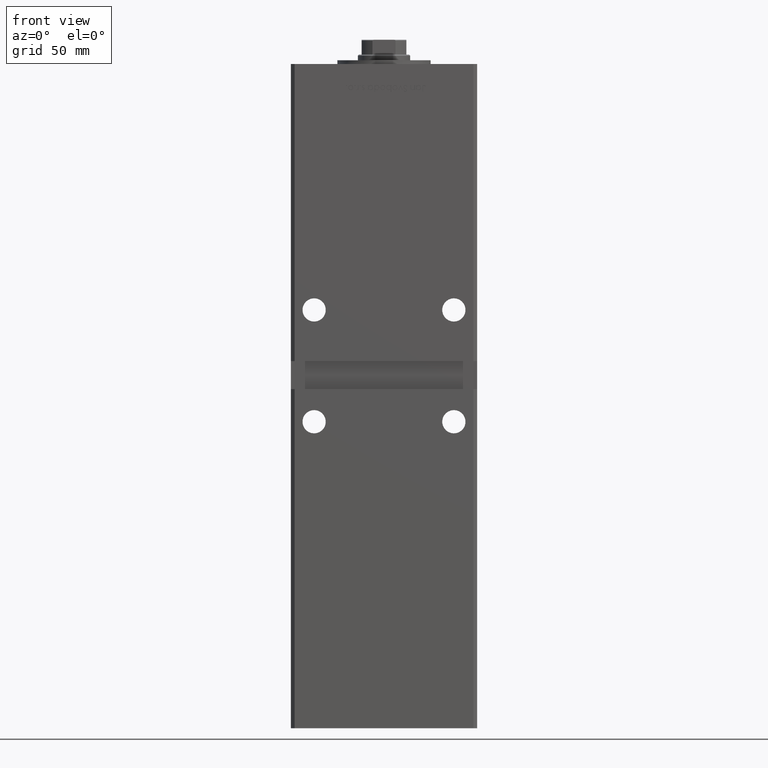
[diagram: clean part render]
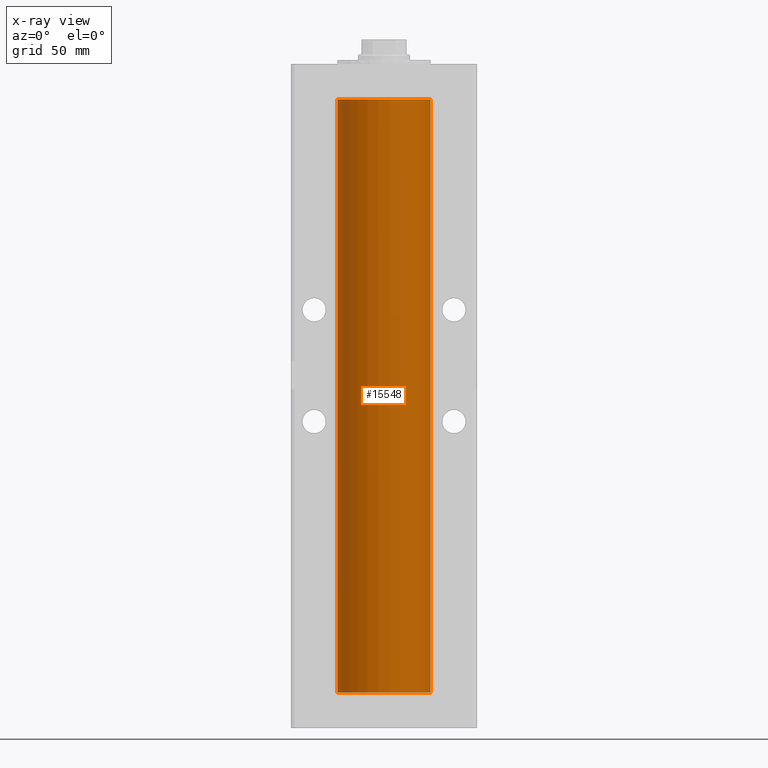
[diagram: x-ray — body ghosted, one internal face saturated and labeled with its STEP entity id]
A machine part, front view, then the same camera in x-ray: the body is ghosted and one INTERNAL B-rep face — a face not visible from any outside direction — is saturated and labeled: STEP entity #15548.
In plain terms, the highlighted cylindrical surface (partial cylindrical patch) has radius 25 mm, axis along (-0, -0, -1).
Its self-contained STEP definition (entity closure, byte-faithful):
#709 = DIRECTION ( 'NONE',  ( -0.000000000000000000, -0.000000000000000000, -1.000000000000000000 ) ) ;
#1084 = ORIENTED_EDGE ( 'NONE', *, *, #42701, .T. ) ;
#1366 = DIRECTION ( 'NONE',  ( -0.000000000000000000, -0.000000000000000000, -1.000000000000000000 ) ) ;
#1885 = LINE ( 'NONE', #42466, #22597 ) ;
#4977 = ORIENTED_EDGE ( 'NONE', *, *, #17893, .T. ) ;
#6064 = ORIENTED_EDGE ( 'NONE', *, *, #29181, .F. ) ;
#8514 = CARTESIAN_POINT ( 'NONE',  ( 0.000000000000000000, 0.000000000000000000, 318.5000000000000000 ) ) ;
#9091 = CARTESIAN_POINT ( 'NONE',  ( -25.00000000000000000, 0.000000000000000000, 318.5000000000000000 ) ) ;
#10748 = CARTESIAN_POINT ( 'NONE',  ( 0.000000000000000000, 0.000000000000000000, 0.000000000000000000 ) ) ;
#14249 = DIRECTION ( 'NONE',  ( -0.000000000000000000, 0.000000000000000000, 1.000000000000000000 ) ) ;
#15548 = ADVANCED_FACE ( 'NONE', ( #28665 ), #20870, .F. ) ;
#17893 = EDGE_CURVE ( 'NONE', #42044, #38605, #49885, .T. ) ;
#19016 = AXIS2_PLACEMENT_3D ( 'NONE', #27386, #43232, #38942 ) ;
#20870 = CYLINDRICAL_SURFACE ( 'NONE', #47225, 25.00000000000000000 ) ;
#21480 = CARTESIAN_POINT ( 'NONE',  ( -25.00000000000000000, 0.000000000000000000, 318.5000000000000000 ) ) ;
#22597 = VECTOR ( 'NONE', #1366, 1000.000000000000000 ) ;
#24292 = VERTEX_POINT ( 'NONE', #51829 ) ;
#24970 = DIRECTION ( 'NONE',  ( -0.000000000000000000, -0.000000000000000000, -1.000000000000000000 ) ) ;
#27386 = CARTESIAN_POINT ( 'NONE',  ( 0.000000000000000000, 0.000000000000000000, 318.5000000000000000 ) ) ;
#28665 = FACE_OUTER_BOUND ( 'NONE', #32820, .T. ) ;
#29181 = EDGE_CURVE ( 'NONE', #42044, #50775, #38125, .T. ) ;
#32623 = AXIS2_PLACEMENT_3D ( 'NONE', #10748, #14249, #43237 ) ;
#32820 = EDGE_LOOP ( 'NONE', ( #4977, #1084, #51901, #6064 ) ) ;
#34715 = EDGE_CURVE ( 'NONE', #50775, #24292, #42919, .T. ) ;
#36358 = VECTOR ( 'NONE', #24970, 1000.000000000000000 ) ;
#38125 = LINE ( 'NONE', #21480, #36358 ) ;
#38605 = VERTEX_POINT ( 'NONE', #39694 ) ;
#38942 = DIRECTION ( 'NONE',  ( 1.000000000000000000, 0.000000000000000000, 0.000000000000000000 ) ) ;
#39694 = CARTESIAN_POINT ( 'NONE',  ( 25.00000000000000000, 3.061616997868383043E-15, 318.5000000000000000 ) ) ;
#42044 = VERTEX_POINT ( 'NONE', #9091 ) ;
#42466 = CARTESIAN_POINT ( 'NONE',  ( 25.00000000000000000, 3.061616997868383043E-15, 318.5000000000000000 ) ) ;
#42701 = EDGE_CURVE ( 'NONE', #38605, #24292, #1885, .T. ) ;
#42919 = CIRCLE ( 'NONE', #32623, 25.00000000000000000 ) ;
#43232 = DIRECTION ( 'NONE',  ( -0.000000000000000000, 0.000000000000000000, 1.000000000000000000 ) ) ;
#43237 = DIRECTION ( 'NONE',  ( 1.000000000000000000, 0.000000000000000000, 0.000000000000000000 ) ) ;
#45223 = CARTESIAN_POINT ( 'NONE',  ( -25.00000000000000000, 0.000000000000000000, 0.000000000000000000 ) ) ;
#45561 = DIRECTION ( 'NONE',  ( -1.000000000000000000, 0.000000000000000000, 0.000000000000000000 ) ) ;
#47225 = AXIS2_PLACEMENT_3D ( 'NONE', #8514, #709, #45561 ) ;
#49885 = CIRCLE ( 'NONE', #19016, 25.00000000000000000 ) ;
#50775 = VERTEX_POINT ( 'NONE', #45223 ) ;
#51829 = CARTESIAN_POINT ( 'NONE',  ( 25.00000000000000000, 3.061616997868383043E-15, 0.000000000000000000 ) ) ;
#51901 = ORIENTED_EDGE ( 'NONE', *, *, #34715, .F. ) ;